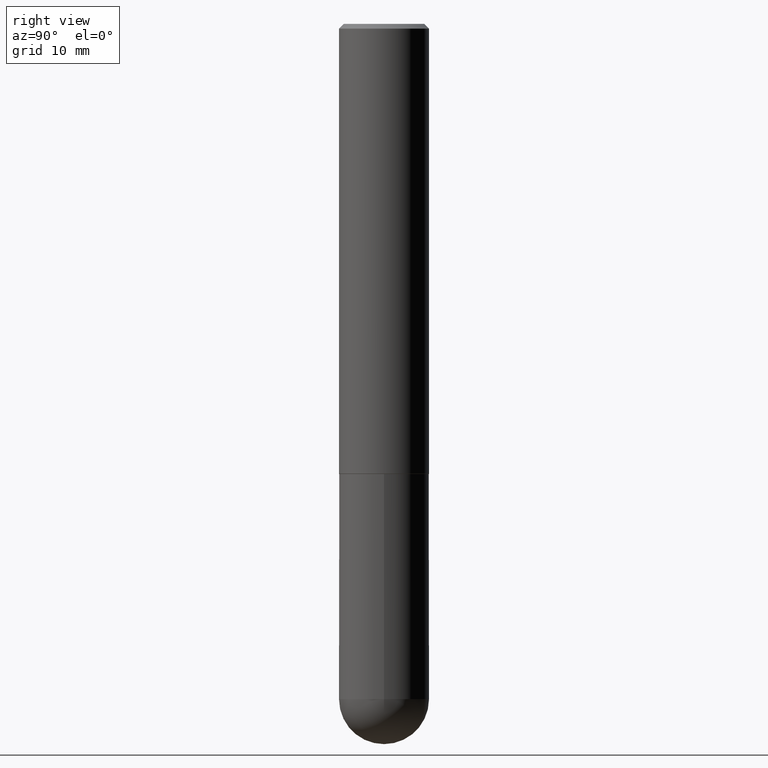
[diagram: clean part render]
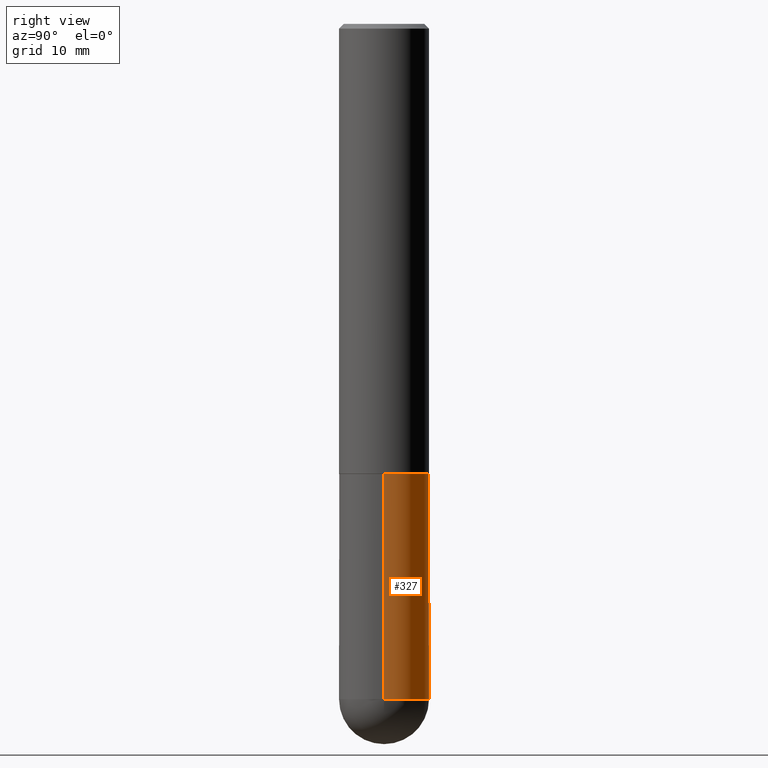
[diagram: same view with one face highlighted and labeled with its STEP entity id]
A machine part, right view. The second image highlights one B-rep face of the part: STEP entity #327.
In plain terms, the highlighted cylindrical surface (partial cylindrical patch) has radius 4.7625 mm, axis along (-0, 0, 1).
Its self-contained STEP definition (entity closure, byte-faithful):
#6 = CIRCLE ( 'NONE', #405, 0.1875000000000000278 ) ;
#14 = VECTOR ( 'NONE', #386, 39.37007874015748143 ) ;
#19 = EDGE_CURVE ( 'NONE', #367, #93, #163, .T. ) ;
#36 = CYLINDRICAL_SURFACE ( 'NONE', #140, 0.1875000000000000555 ) ;
#52 = CARTESIAN_POINT ( 'NONE',  ( 4.585254011597131119E-29, -6.546527510330898707E-15, -1.875000000000000000 ) ) ;
#93 = VERTEX_POINT ( 'NONE', #392 ) ;
#97 = ORIENTED_EDGE ( 'NONE', *, *, #19, .F. ) ;
#106 = EDGE_CURVE ( 'NONE', #93, #251, #6, .T. ) ;
#108 = DIRECTION ( 'NONE',  ( -2.445468806185136597E-29, 3.491481338843145583E-15, 1.000000000000000000 ) ) ;
#116 = CARTESIAN_POINT ( 'NONE',  ( -0.1875000000000000555, -6.850891758363436324E-15, -2.812500000000000000 ) ) ;
#127 = VERTEX_POINT ( 'NONE', #116 ) ;
#128 = EDGE_CURVE ( 'NONE', #367, #186, #326, .T. ) ;
#131 = CARTESIAN_POINT ( 'NONE',  ( 0.000000000000000000, 0.000000000000000000, 0.000000000000000000 ) ) ;
#139 = CARTESIAN_POINT ( 'NONE',  ( -0.1875000000000000278, -6.850891758363434746E-15, -1.875000000000000000 ) ) ;
#140 = AXIS2_PLACEMENT_3D ( 'NONE', #131, #225, #349 ) ;
#151 = ORIENTED_EDGE ( 'NONE', *, *, #128, .T. ) ;
#157 = ORIENTED_EDGE ( 'NONE', *, *, #240, .T. ) ;
#163 = LINE ( 'NONE', #259, #14 ) ;
#175 = CARTESIAN_POINT ( 'NONE',  ( 0.1875000000000000555, -9.492464889979800759E-15, -2.812500000000000000 ) ) ;
#178 = CARTESIAN_POINT ( 'NONE',  ( 6.877881017395696678E-29, -9.819791265496348060E-15, -2.812500000000000000 ) ) ;
#186 = VERTEX_POINT ( 'NONE', #305 ) ;
#189 = EDGE_LOOP ( 'NONE', ( #157, #378, #212, #97, #151 ) ) ;
#193 = VECTOR ( 'NONE', #394, 39.37007874015748143 ) ;
#196 = FACE_OUTER_BOUND ( 'NONE', #189, .T. ) ;
#212 = ORIENTED_EDGE ( 'NONE', *, *, #106, .F. ) ;
#213 = DIRECTION ( 'NONE',  ( -2.445468806185136597E-29, 3.491481338843145583E-15, 1.000000000000000000 ) ) ;
#214 = DIRECTION ( 'NONE',  ( 1.000000000000000000, -6.982962677686266711E-15, 0.000000000000000000 ) ) ;
#217 = AXIS2_PLACEMENT_3D ( 'NONE', #258, #108, #324 ) ;
#225 = DIRECTION ( 'NONE',  ( -2.445468806185136597E-29, 3.491481338843145583E-15, 1.000000000000000000 ) ) ;
#237 = CIRCLE ( 'NONE', #217, 0.1875000000000000555 ) ;
#240 = EDGE_CURVE ( 'NONE', #186, #127, #237, .T. ) ;
#248 = DIRECTION ( 'NONE',  ( 1.000000000000000000, -6.982962677686270655E-15, 0.000000000000000000 ) ) ;
#251 = VERTEX_POINT ( 'NONE', #139 ) ;
#258 = CARTESIAN_POINT ( 'NONE',  ( 6.877881017395696678E-29, -9.819791265496348060E-15, -2.812500000000000000 ) ) ;
#259 = CARTESIAN_POINT ( 'NONE',  ( 0.1875000000000000555, -1.309305502066175205E-15, 9.142831454617382414E-30 ) ) ;
#274 = CARTESIAN_POINT ( 'NONE',  ( -0.1875000000000000555, 1.332267629550188243E-15, -9.223003294227950793E-30 ) ) ;
#305 = CARTESIAN_POINT ( 'NONE',  ( 1.309305502066243245E-15, 0.1874999999999901468, -2.812500000000000444 ) ) ;
#308 = AXIS2_PLACEMENT_3D ( 'NONE', #178, #403, #248 ) ;
#324 = DIRECTION ( 'NONE',  ( 1.000000000000000000, -6.982962677686270655E-15, 0.000000000000000000 ) ) ;
#326 = CIRCLE ( 'NONE', #308, 0.1875000000000000555 ) ;
#327 = ADVANCED_FACE ( 'NONE', ( #196 ), #36, .T. ) ;
#329 = LINE ( 'NONE', #274, #193 ) ;
#345 = EDGE_CURVE ( 'NONE', #127, #251, #329, .T. ) ;
#349 = DIRECTION ( 'NONE',  ( 1.000000000000000000, -6.982962677686265922E-15, 4.876176775795935793E-29 ) ) ;
#367 = VERTEX_POINT ( 'NONE', #175 ) ;
#378 = ORIENTED_EDGE ( 'NONE', *, *, #345, .T. ) ;
#386 = DIRECTION ( 'NONE',  ( -2.445468806185136877E-29, 3.491481338843145188E-15, 1.000000000000000000 ) ) ;
#392 = CARTESIAN_POINT ( 'NONE',  ( 0.1875000000000000278, -7.855833012397073715E-15, -1.875000000000000000 ) ) ;
#394 = DIRECTION ( 'NONE',  ( -2.445468806185136877E-29, 3.491481338843145188E-15, 1.000000000000000000 ) ) ;
#403 = DIRECTION ( 'NONE',  ( -2.445468806185136597E-29, 3.491481338843145583E-15, 1.000000000000000000 ) ) ;
#405 = AXIS2_PLACEMENT_3D ( 'NONE', #52, #213, #214 ) ;